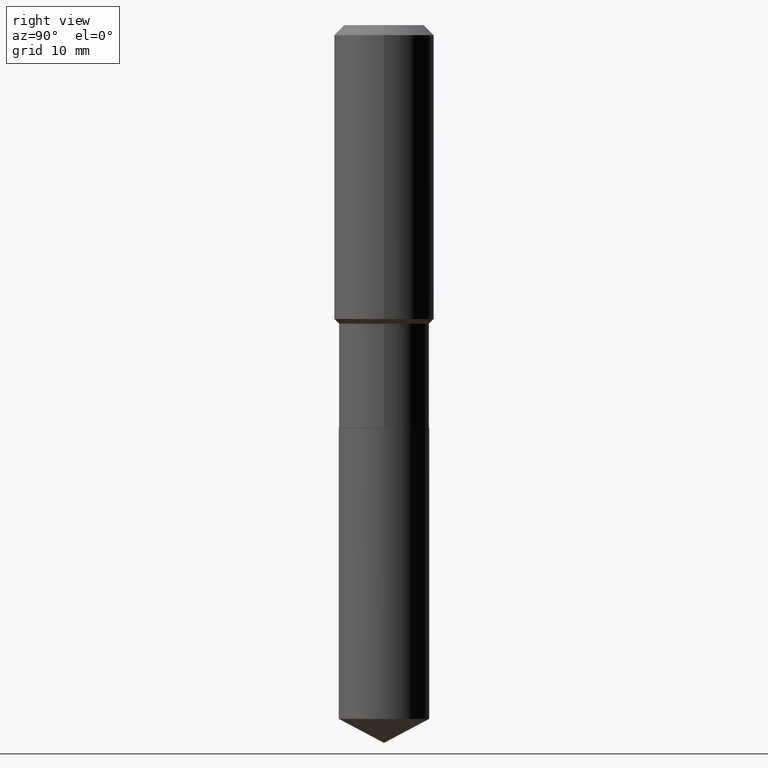
[diagram: clean part render]
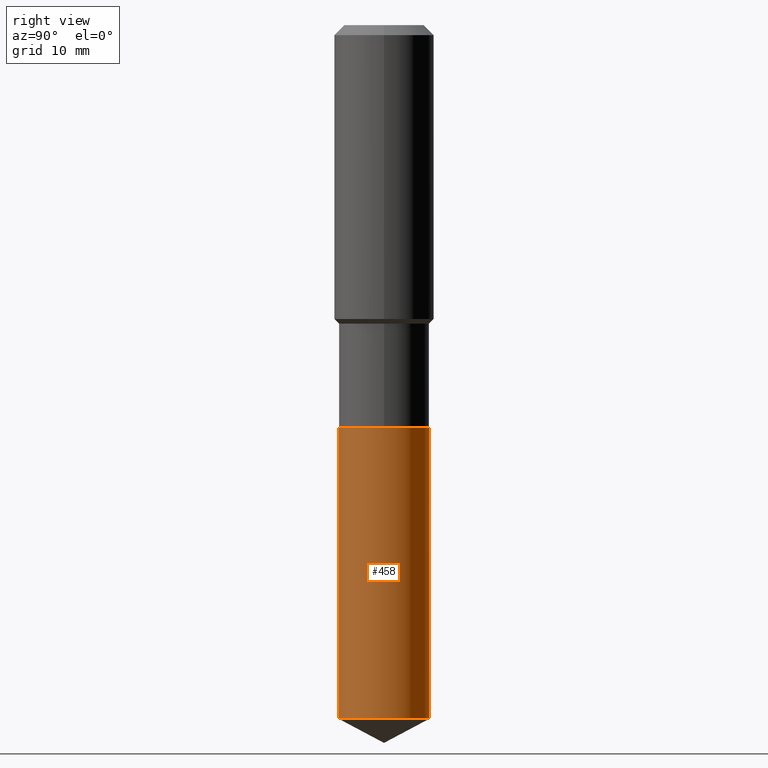
[diagram: same view with one face highlighted and labeled with its STEP entity id]
A machine part, right view. The second image highlights one B-rep face of the part: STEP entity #458.
In plain terms, the highlighted cylindrical surface (partial cylindrical patch) has radius 7.2504 mm, axis along (-0, 0, 1).
Its self-contained STEP definition (entity closure, byte-faithful):
#2 = DIRECTION ( 'NONE',  ( -2.445654511674709390E-29, 3.491215398012376990E-15, 1.000000000000000000 ) ) ;
#10 = CARTESIAN_POINT ( 'NONE',  ( -1.993286696345482241E-15, -0.2854500000000088078, -2.539399999999998769 ) ) ;
#29 = CARTESIAN_POINT ( 'NONE',  ( 1.070128100905527205E-28, -1.527761786151748946E-14, -4.375823542732231175 ) ) ;
#30 = VERTEX_POINT ( 'NONE', #104 ) ;
#45 = VERTEX_POINT ( 'NONE', #100 ) ;
#47 = EDGE_LOOP ( 'NONE', ( #117, #457, #469, #216 ) ) ;
#48 = CARTESIAN_POINT ( 'NONE',  ( 6.210023486426534966E-29, -8.866267711858282579E-15, -2.539399999999999658 ) ) ;
#51 = CIRCLE ( 'NONE', #323, 0.2854499999999999815 ) ;
#93 = FACE_OUTER_BOUND ( 'NONE', #47, .T. ) ;
#100 = CARTESIAN_POINT ( 'NONE',  ( 2.028244239227312346E-15, 0.2854499999999847160, -4.375823542732232951 ) ) ;
#104 = CARTESIAN_POINT ( 'NONE',  ( 2.028244239227313134E-15, 0.2854499999999910997, -2.539400000000000990 ) ) ;
#105 = VECTOR ( 'NONE', #319, 39.37007874015748143 ) ;
#117 = ORIENTED_EDGE ( 'NONE', *, *, #190, .T. ) ;
#153 = CARTESIAN_POINT ( 'NONE',  ( 6.210023486426534966E-29, -8.866267711858282579E-15, -2.539399999999999658 ) ) ;
#170 = CARTESIAN_POINT ( 'NONE',  ( 2.028244239227267380E-15, 0.2854499999999910997, -2.539400000000000990 ) ) ;
#190 = EDGE_CURVE ( 'NONE', #411, #45, #51, .T. ) ;
#198 = EDGE_CURVE ( 'NONE', #45, #30, #478, .T. ) ;
#201 = DIRECTION ( 'NONE',  ( -2.445654511674709390E-29, 3.491215398012376990E-15, 1.000000000000000000 ) ) ;
#216 = ORIENTED_EDGE ( 'NONE', *, *, #483, .F. ) ;
#228 = VECTOR ( 'NONE', #430, 39.37007874015748143 ) ;
#247 = AXIS2_PLACEMENT_3D ( 'NONE', #153, #2, #429 ) ;
#250 = CARTESIAN_POINT ( 'NONE',  ( -1.993286696345437276E-15, -0.2854500000000152471, -4.375823542732230287 ) ) ;
#252 = LINE ( 'NONE', #10, #228 ) ;
#319 = DIRECTION ( 'NONE',  ( -2.445654511674709110E-29, 3.491215398012377385E-15, 1.000000000000000000 ) ) ;
#323 = AXIS2_PLACEMENT_3D ( 'NONE', #29, #337, #489 ) ;
#327 = EDGE_CURVE ( 'NONE', #380, #30, #358, .T. ) ;
#337 = DIRECTION ( 'NONE',  ( -2.445654511674709390E-29, 3.491215398012376990E-15, 1.000000000000000000 ) ) ;
#358 = CIRCLE ( 'NONE', #247, 0.2854499999999999815 ) ;
#360 = CARTESIAN_POINT ( 'NONE',  ( -1.993286696345482241E-15, -0.2854500000000088633, -2.539399999999998769 ) ) ;
#368 = AXIS2_PLACEMENT_3D ( 'NONE', #48, #201, #443 ) ;
#380 = VERTEX_POINT ( 'NONE', #360 ) ;
#388 = CYLINDRICAL_SURFACE ( 'NONE', #368, 0.2854499999999999815 ) ;
#411 = VERTEX_POINT ( 'NONE', #250 ) ;
#429 = DIRECTION ( 'NONE',  ( -6.982962677686265922E-15, -1.000000000000000000, 3.828128209723963046E-15 ) ) ;
#430 = DIRECTION ( 'NONE',  ( -2.445654511674709110E-29, 3.491215398012377385E-15, 1.000000000000000000 ) ) ;
#443 = DIRECTION ( 'NONE',  ( -6.982962677686265133E-15, -1.000000000000000000, 3.828128209723963046E-15 ) ) ;
#457 = ORIENTED_EDGE ( 'NONE', *, *, #198, .T. ) ;
#458 = ADVANCED_FACE ( 'NONE', ( #93 ), #388, .T. ) ;
#469 = ORIENTED_EDGE ( 'NONE', *, *, #327, .F. ) ;
#478 = LINE ( 'NONE', #170, #105 ) ;
#483 = EDGE_CURVE ( 'NONE', #411, #380, #252, .T. ) ;
#489 = DIRECTION ( 'NONE',  ( -6.982962677686265133E-15, -1.000000000000000000, 3.828128209723963046E-15 ) ) ;